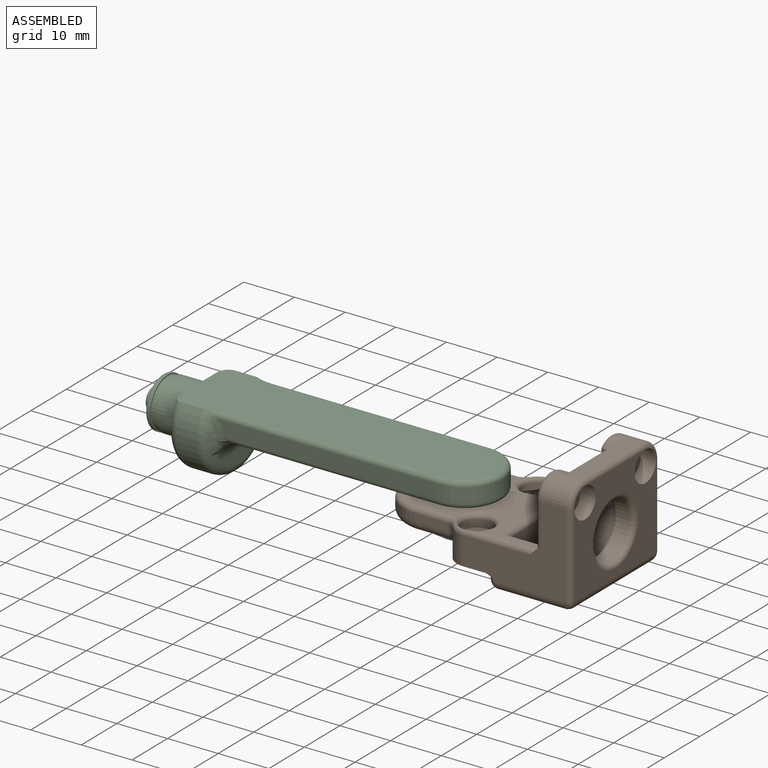
[diagram: assembled view]
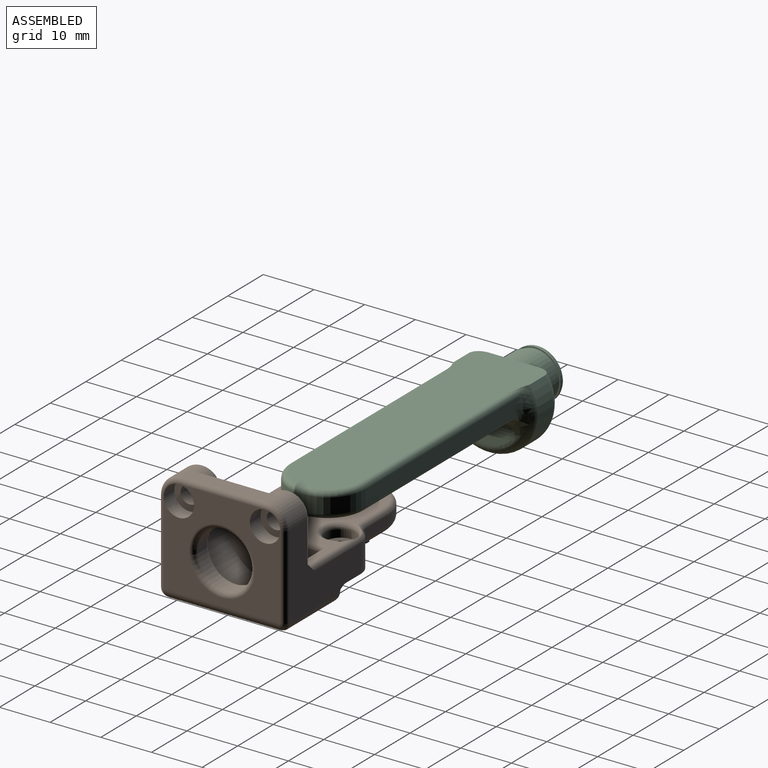
[diagram: assembled view, second angle]
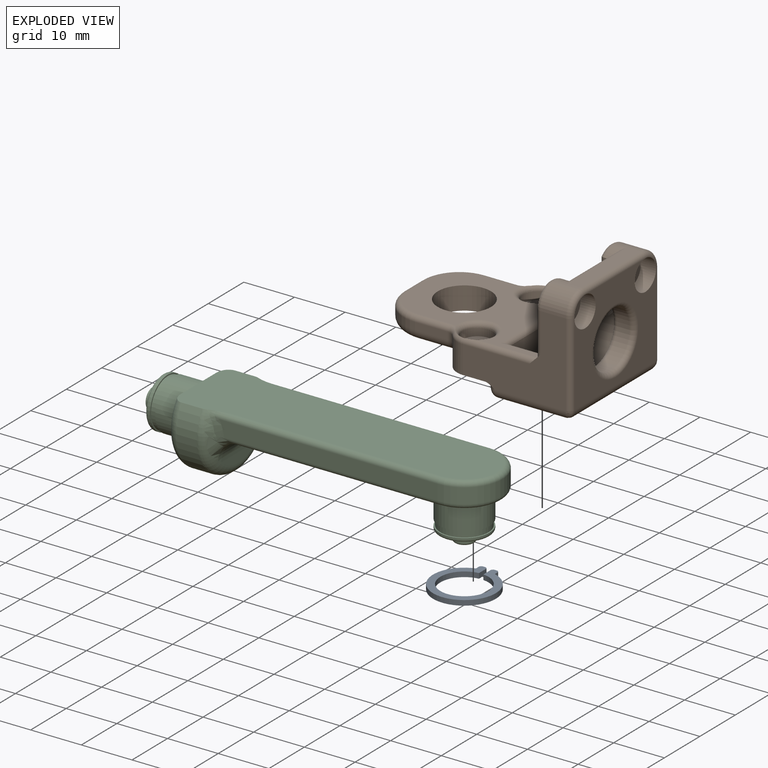
[diagram: exploded view]
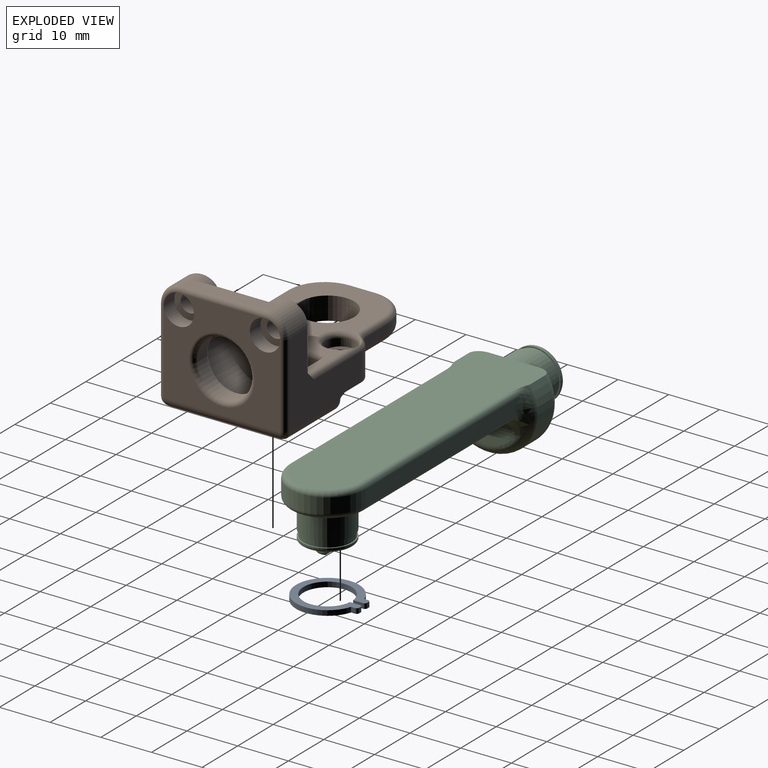
[diagram: exploded view, second angle]
ASSEMBLY  parts=3 mates=2
PART A: 14 faces, bbox 12.4x13.4x1 mm
  f0: cylinder r=4.75mm len=9.5mm, axis (0,0,-1), area 29mm2, adj f1,f7,f8,f9
  f1: plane 1.97x1mm, normal (-1,0,0), area 2mm2, adj f0,f8,f9,f12
  f2: plane 1x0.42mm, normal (0,-1,0), area 0.4mm2, adj f8,f9,f12,f13
  f3: plane 1x0.78mm, normal (1,0,0), area 0.8mm2, adj f4,f8,f9,f13
  f4: cylinder r=6.2mm len=12.4mm, axis (0,0,-1), area 35.2mm2, adj f3,f5,f8,f9
  f5: plane 1x0.78mm, normal (-1,0,0), area 0.8mm2, adj f4,f8,f9,f11
  f6: plane 1x0.42mm, normal (0,-1,0), area 0.4mm2, adj f8,f9,f10,f11
  f7: plane 1.97x1mm, normal (1,0,0), area 2mm2, adj f0,f8,f9,f10
  f8: plane 13.4x12.4mm, normal (0,0,1), area 51.6mm2, adj f0,f1,f2,f3,f4,f5,f6,f7
  f9: plane 13.4x12.4mm, normal (0,0,-1), area 51.6mm2, adj f0,f1,f2,f3,f4,f5,f6,f7
  f10: cylinder r=0.5mm len=1mm, axis (0,0,1), area 0.8mm2, adj f6,f7,f8,f9
  f11: cylinder r=0.5mm len=1mm, axis (0,0,-1), area 0.8mm2, adj f5,f6,f8,f9
  f12: cylinder r=0.5mm len=1mm, axis (0,0,-1), area 0.8mm2, adj f1,f2,f8,f9
  f13: cylinder r=0.5mm len=1mm, axis (0,0,1), area 0.8mm2, adj f2,f3,f8,f9
PART B: 100 faces, bbox 41x29.4x23.3 mm
  f0: cylinder r=9.5mm len=19mm, axis (1,0,0), area 299.9mm2, adj f1,f7,f39,f40,f43,f44,f75,f80
  f1: plane 21x19mm, normal (-1,0,0), area 180.2mm2, adj f0,f2,f3,f37,f38,f39,f40,f85
  f2: cylinder r=4mm len=7.01mm, axis (-1,0,0), area 38mm2, adj f1,f8,f38,f42,f70,f79,f85
  f3: cylinder r=4mm len=7.01mm, axis (-1,0,0), area 38mm2, adj f1,f9,f37,f42,f72,f83,f85
  f4: cylinder r=4mm len=8mm, axis (0,0,1), area 42.2mm2, adj f5,f9,f24,f27,f41,f51,f57
  f5: plane 17.22x16.2mm, normal (0,0,-1), area 151.6mm2, adj f4,f6,f20,f41,f45,f46,f47,f48
  f6: cylinder r=4mm len=8mm, axis (0,0,1), area 42.2mm2, adj f5,f8,f25,f27,f41,f45,f66
  f7: plane 18.78x8.01mm, normal (1,0,0), area 113.4mm2, adj f0,f87,f89,f90
  f8: plane 20.59x16.84mm, normal (0,1,0), area 178.5mm2, adj f2,f6,f27,f43,f54,f67,f69,f78
  f9: plane 20.59x16.84mm, normal (0,-1,0), area 178.5mm2, adj f3,f4,f27,f44,f52,f55,f73,f81
  f10: plane 31.81x23mm, normal (0,0,1), area 289.8mm2, adj f20,f43,f44,f55,f56,f58,f59,f60
  f11: plane 11.81x5.01mm, normal (-1,0,0), area 22.8mm2, adj f14,f44,f80,f81,f82,f83,f84
  f12: plane 23x19.5mm, normal (1,0,0), area 255.4mm2, adj f34,f35,f53,f69,f71,f73,f99
  f13: cylinder r=1.75mm len=4mm, axis (-1,0,0), area 44mm2, adj f26,f36,f75,f76
  f14: cylinder r=1.75mm len=4mm, axis (-1,0,0), area 44mm2, adj f11,f33,f80,f82
  f15: cylinder r=1.75mm len=4mm, axis (0,0,-1), area 44mm2, adj f27,f31
  f16: cylinder r=1.75mm len=4mm, axis (0,0,-1), area 44mm2, adj f27,f30
  f17: cylinder r=5.5mm len=11mm, axis (1,0,0), area 86.4mm2, adj f98,f99
  f18: plane 6.38x1.5mm, normal (0,-1,0), area 9.6mm2, adj f23,f24,f50,f59
  f19: plane 6.38x1.5mm, normal (0,1,0), area 9.6mm2, adj f22,f25,f46,f63
  f20: cylinder r=5.25mm len=10.5mm, axis (0,0,-1), area 148.4mm2, adj f5,f10
  f21: plane 5x1.5mm, normal (-1,0,0), area 7.5mm2, adj f22,f23,f48,f61
  f22: cylinder r=7.5mm len=7.5mm, axis (0,0,1), area 17.7mm2, adj f19,f21,f47,f62
  f23: cylinder r=7.5mm len=7.5mm, axis (0,0,-1), area 17.7mm2, adj f18,f21,f49,f60
  f24: cylinder r=2mm len=1.62mm, axis (0,0,1), area 2.8mm2, adj f4,f18,f51,f58
  f25: cylinder r=2mm len=1.62mm, axis (0,0,1), area 2.8mm2, adj f6,f19,f45,f64
  f26: plane 11.81x5.01mm, normal (-1,0,0), area 22.8mm2, adj f13,f43,f75,f76,f77,f78,f79
  f27: plane 25x8.24mm, normal (0,0,-1), area 120.9mm2, adj f4,f6,f8,f9,f15,f16,f41,f95
  f28: plane 21x13.01mm, normal (0,0,-1), area 273.1mm2, adj f52,f53,f54,f93
  f29: cylinder r=3mm len=6mm, axis (0,0,1), area 28.3mm2, adj f30,f56
  f30: plane 6x6mm, normal (0,0,1), area 18.7mm2, adj f16,f29
  f31: plane 6x6mm, normal (0,0,1), area 18.7mm2, adj f15,f32
  f32: cylinder r=3mm len=6mm, axis (0,0,1), area 28.3mm2, adj f31,f65
  f33: plane 6x6mm, normal (1,0,0), area 18.7mm2, adj f14,f34
  f34: cylinder r=3mm len=6mm, axis (1,0,0), area 56.5mm2, adj f12,f33,f72
  f35: cylinder r=3mm len=6mm, axis (1,0,0), area 56.5mm2, adj f12,f36,f70
  f36: plane 6x6mm, normal (1,0,0), area 18.7mm2, adj f13,f35
  f37: plane 1.5x1.12mm, normal (0,1,0), area 1.7mm2, adj f1,f3,f39,f84
  f38: plane 1.5x1.12mm, normal (0,-1,0), area 1.7mm2, adj f1,f2,f40,f77
  f39: cylinder r=5mm len=3.45mm, axis (1,0,0), area 5.7mm2, adj f0,f1,f37,f82
  f40: cylinder r=5mm len=3.45mm, axis (1,0,0), area 5.7mm2, adj f0,f1,f38,f76
  f41: plane 9.06x2mm, normal (-1,0,0), area 18.1mm2, adj f4,f5,f6,f27
  f42: plane 17x2.5mm, normal (0,0,1), area 42.5mm2, adj f2,f3,f71,f85
  f43: plane 3.52x2.61mm, normal (-0.71,0,0.71), area 2mm2, adj f0,f8,f10,f26,f67,f75,f78,f88
  f44: plane 3.52x2.61mm, normal (-0.71,0,0.71), area 2mm2, adj f0,f9,f10,f11,f55,f80,f81,f86
  f45: torus R=4mm, axis (0,0,1), area 4.6mm2, adj f5,f6,f25,f46
  f46: cylinder r=2mm len=6.38mm, axis (-1,0,0), area 20mm2, adj f5,f19,f45,f47
  f47: torus R=5.5mm, axis (0,0,1), area 33.4mm2, adj f5,f22,f46,f48
  f48: cylinder r=2mm len=5mm, axis (0,-1,0), area 15.7mm2, adj f5,f21,f47,f49
  f49: torus R=5.5mm, axis (0,0,1), area 33.4mm2, adj f5,f23,f48,f50
  f50: cylinder r=2mm len=6.38mm, axis (1,0,0), area 20mm2, adj f5,f18,f49,f51
  f51: torus R=4mm, axis (0,0,1), area 4.6mm2, adj f4,f5,f24,f50
  f52: cylinder r=2mm len=14.01mm, axis (1,0,0), area 42.4mm2, adj f9,f28,f74,f94
  f53: cylinder r=2mm len=23mm, axis (0,-1,0), area 69.1mm2, adj f12,f28,f68,f74
  f54: cylinder r=2mm len=14.01mm, axis (-1,0,0), area 42.4mm2, adj f8,f28,f68,f92
  f55: cylinder r=1mm len=14.06mm, axis (-1,0,0), area 20.6mm2, adj f9,f10,f44,f56,f57
  f56: torus R=4mm, axis (0,0,1), area 30.2mm2, adj f10,f29,f55,f57,f58
  f57: torus R=3mm, axis (0,0,1), area 3.8mm2, adj f4,f55,f56,f58
  f58: torus R=3mm, axis (0,0,1), area 3mm2, adj f10,f24,f56,f57,f59
  f59: cylinder r=1mm len=6.38mm, axis (-1,0,0), area 10mm2, adj f10,f18,f58,f60
  f60: torus R=6.5mm, axis (0,0,1), area 17.6mm2, adj f10,f23,f59,f61
  f61: cylinder r=1mm len=5mm, axis (0,1,0), area 7.9mm2, adj f10,f21,f60,f62
  f62: torus R=6.5mm, axis (0,0,1), area 17.6mm2, adj f10,f22,f61,f63
  f63: cylinder r=1mm len=6.38mm, axis (1,0,0), area 10mm2, adj f10,f19,f62,f64
  f64: torus R=3mm, axis (0,0,1), area 3mm2, adj f10,f25,f63,f65,f66
  f65: torus R=4mm, axis (0,0,1), area 30.2mm2, adj f10,f32,f64,f66,f67
  f66: torus R=3mm, axis (0,0,1), area 3.8mm2, adj f6,f64,f65,f67
  f67: cylinder r=1mm len=14.06mm, axis (1,0,0), area 20.6mm2, adj f8,f10,f43,f65,f66
  f68: bspline ~2.39x2mm, area 2.2mm2, adj f53,f54,f69
  f69: cylinder r=1mm len=16.5mm, axis (0,0,-1), area 25.9mm2, adj f8,f12,f68,f70
  f70: torus R=3mm, axis (-1,0,0), area 9mm2, adj f2,f35,f69,f71
  f71: cylinder r=1mm len=17mm, axis (0,1,0), area 26.7mm2, adj f12,f42,f70,f72
  f72: torus R=3mm, axis (-1,0,0), area 9mm2, adj f3,f34,f71,f73
  f73: cylinder r=1mm len=16.5mm, axis (0,0,1), area 25.9mm2, adj f9,f12,f72,f74
  f74: bspline ~2.39x2mm, area 2.2mm2, adj f52,f53,f73
  f75: torus R=10.5mm, axis (1,0,0), area 11.7mm2, adj f0,f13,f26,f43,f76
  f76: torus R=4mm, axis (1,0,0), area 5.2mm2, adj f13,f26,f40,f75,f77
  f77: cylinder r=1mm len=1.12mm, axis (0,0,-1), area 1.4mm2, adj f26,f38,f76,f79
  f78: cylinder r=1mm len=8.81mm, axis (0,0,1), area 13mm2, adj f8,f26,f43,f79
  f79: torus R=3mm, axis (1,0,0), area 13.5mm2, adj f2,f26,f77,f78
  f80: torus R=10.5mm, axis (1,0,0), area 11.7mm2, adj f0,f11,f14,f44,f82
  f81: cylinder r=1mm len=8.81mm, axis (0,0,-1), area 13mm2, adj f9,f11,f44,f83
  f82: torus R=4mm, axis (1,0,0), area 5.2mm2, adj f11,f14,f39,f80,f84
  f83: torus R=3mm, axis (1,0,0), area 13.5mm2, adj f3,f11,f81,f84
  f84: cylinder r=1mm len=1.12mm, axis (0,0,1), area 1.4mm2, adj f11,f37,f82,f83
  f85: cylinder r=1mm len=17mm, axis (0,-1,0), area 22.5mm2, adj f1,f2,f3,f42
  f86: cylinder r=1mm len=8.31mm, axis (1,0,0), area 10.5mm2, adj f0,f10,f44,f87
  f87: cylinder r=1mm len=20.78mm, axis (0,1,0), area 30.6mm2, adj f0,f7,f10,f86,f88
  f88: cylinder r=1mm len=8.31mm, axis (1,0,0), area 10.5mm2, adj f0,f10,f43,f87
  f89: extruded ~2x1.66mm, area 0.4mm2, adj f0,f7
  f90: extruded ~2x1.66mm, area 0.9mm2, adj f0,f7
  f91: plane 22x0.5mm, normal (-1,0,0), area 10.9mm2, adj f92,f93,f94,f96
  f92: torus R=0.5mm, axis (1,0,0), area 5.4mm2, adj f54,f91,f93,f95
  f93: cylinder r=1.5mm len=21mm, axis (0,-1,0), area 49.5mm2, adj f28,f91,f92,f94
  f94: torus R=0.5mm, axis (1,0,0), area 5.4mm2, adj f52,f91,f93,f97
  f95: torus R=2.5mm, axis (0,0,-1), area 3.1mm2, adj f8,f27,f92,f96
  f96: cylinder r=1mm len=22mm, axis (0,1,0), area 34.6mm2, adj f27,f91,f95,f97
  f97: torus R=2.5mm, axis (0,0,-1), area 3.1mm2, adj f9,f27,f94,f96
  f98: torus R=6.5mm, axis (1,0,0), area 57.9mm2, adj f1,f17
  f99: torus R=6.5mm, axis (-1,0,0), area 57.9mm2, adj f12,f17
PART C: 47 faces, bbox 71.3x21.2x18.7 mm
  f0: plane 46.1x13mm, normal (0,0,1), area 501.4mm2, adj f4,f31,f32,f33,f40,f41,f42
  f1: plane 43.09x3mm, normal (0,-1,0), area 127.6mm2, adj f12,f31,f34,f38
  f2: plane 43.09x3mm, normal (0,1,0), area 127.6mm2, adj f12,f33,f36,f44
  f3: cylinder r=5mm len=10mm, axis (1,0,0), area 157.1mm2, adj f5,f21
  f4: cylinder r=5mm len=10mm, axis (0,0,-1), area 157.1mm2, adj f0,f9
  f5: plane 14.03x12.01mm, normal (-1,0,0), area 62.4mm2, adj f3,f6,f29
  f6: plane 60.73x16.73mm, normal (0,0,-1), area 763mm2, adj f5,f27,f29,f30,f34,f35,f36,f37
  f7: cylinder r=4.75mm len=9.5mm, axis (0,0,-1), area 35.8mm2, adj f8,f9
  f8: plane 10x10mm, normal (0,0,-1), area 7.7mm2, adj f7,f11
  f9: plane 10x10mm, normal (0,0,1), area 7.7mm2, adj f4,f7
  f10: plane 9x9mm, normal (0,0,1), area 53.6mm2, adj f13,f14,f18
  f11: cylinder r=5mm len=10mm, axis (0,0,-1), area 9.4mm2, adj f8,f18
  f12: cylinder r=7.5mm len=15mm, axis (0,0,-1), area 70.7mm2, adj f1,f2,f32,f35
  f13: cylinder r=2mm len=4mm, axis (0,0,-1), area 12.5mm2, adj f10,f14,f17
  f14: plane 3.5x1.5mm, normal (0,-1,0), area 5.2mm2, adj f10,f13,f16
  f15: plane 3x1.97mm, normal (0,0,1), area 4.9mm2, adj f16,f17
  f16: cylinder r=0.5mm len=3.5mm, axis (-1,0,0), area 2.5mm2, adj f14,f15,f17
  f17: torus R=1.5mm, axis (0,0,1), area 5.7mm2, adj f13,f15,f16
  f18: torus R=4.5mm, axis (0,0,1), area 23.8mm2, adj f10,f11
  f19: cylinder r=4.75mm len=9.5mm, axis (1,0,0), area 29.8mm2, adj f20,f21
  f20: plane 10x10mm, normal (1,0,0), area 7.7mm2, adj f19,f23
  f21: plane 10x10mm, normal (-1,0,0), area 7.7mm2, adj f3,f19
  f22: plane 9x9mm, normal (-1,0,0), area 53.6mm2, adj f24,f25,f46
  f23: cylinder r=5mm len=10mm, axis (1,0,0), area 15.7mm2, adj f20,f46
  f24: cylinder r=2mm len=4mm, axis (1,0,0), area 16.6mm2, adj f22,f25,f26
  f25: plane 3.5x2mm, normal (0,0,1), area 7mm2, adj f22,f24,f26
  f26: plane 4x2.97mm, normal (-1,0,0), area 10mm2, adj f24,f25
  f27: cylinder r=9.01mm len=18.03mm, axis (-1,0,0), area 155.7mm2, adj f6,f29,f30
  f28: plane 9.84x2.01mm, normal (1,0,0), area 13.6mm2, adj f30,f41
  f29: torus R=7.01mm, axis (-1,0,0), area 117.5mm2, adj f5,f6,f27
  f30: torus R=7.01mm, axis (-1,0,0), area 82.2mm2, adj f6,f27,f28,f37,f38,f39,f40,f42
  f31: cylinder r=1mm len=42.2mm, axis (-1,0,0), area 64.2mm2, adj f0,f1,f32,f39
  f32: torus R=6.5mm, axis (0,0,1), area 35.2mm2, adj f0,f12,f31,f33
  f33: cylinder r=1mm len=42.2mm, axis (1,0,0), area 64.2mm2, adj f0,f2,f32,f43
  f34: cylinder r=1mm len=44.22mm, axis (1,0,0), area 68.1mm2, adj f1,f6,f35,f37
  f35: torus R=6.5mm, axis (0,0,1), area 35.2mm2, adj f6,f12,f34,f36
  f36: cylinder r=1mm len=44.22mm, axis (-1,0,0), area 68.1mm2, adj f2,f6,f35,f45
  f37: bspline ~5.29x5.03mm, area 6.8mm2, adj f6,f30,f34,f38
  f38: bspline ~4.99x3.52mm, area 8.1mm2, adj f1,f30,f37,f39
  f39: bspline ~6.23x5.78mm, area 16.8mm2, adj f30,f31,f38,f40
  f40: bspline ~5.32x5.31mm, area 8.8mm2, adj f0,f30,f39,f41
  f41: cylinder r=5mm len=9.84mm, axis (0,-1,0), area 77.3mm2, adj f0,f28,f40,f42
  f42: bspline ~5.32x5.31mm, area 8.8mm2, adj f0,f30,f41,f43
  f43: bspline ~5.76x5.75mm, area 16.8mm2, adj f30,f33,f42,f44
  f44: bspline ~4.99x3.52mm, area 8.1mm2, adj f2,f30,f43,f45
  f45: bspline ~5.29x5.03mm, area 6.8mm2, adj f6,f30,f36,f44
  f46: torus R=4.5mm, axis (-1,0,0), area 23.8mm2, adj f22,f23
PLACE A rot(axis=(1,0,0),180deg) t=(18.42,21.62,9.4)mm
PLACE B t=(28.17,21.62,9.9)mm
PLACE C rot(axis=(1,0,0),180deg) t=(-4.08,21.62,19.4)mm fixed
MATE revolute C.f4 <-> B.f20  axis (0,0,1) through (18.42,21.62,14.4)mm
MATE fastened A.f4 <-> C.f7  axis (0,0,1) through (18.42,21.62,9.4)mm
